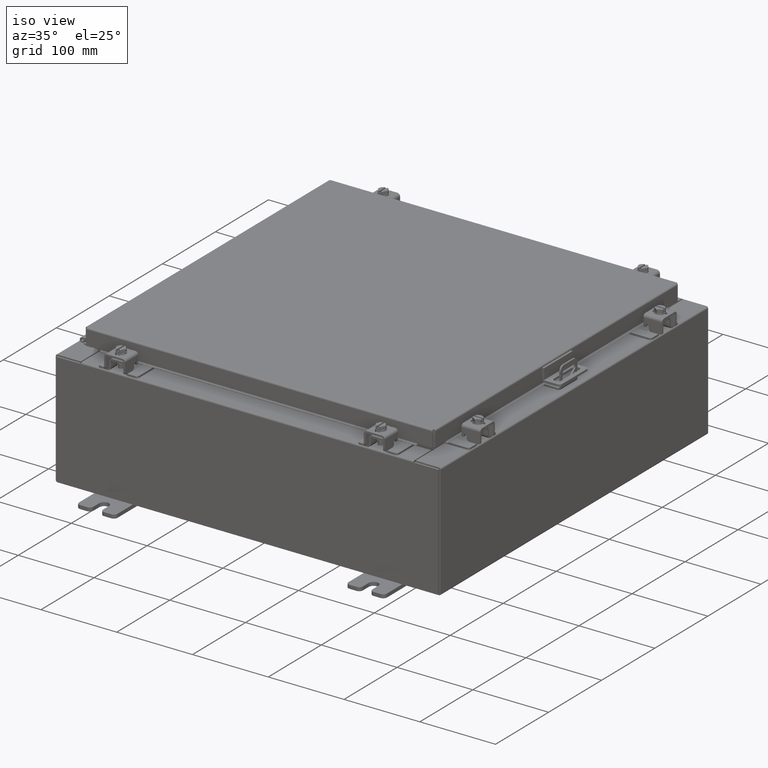
[diagram: clean part render]
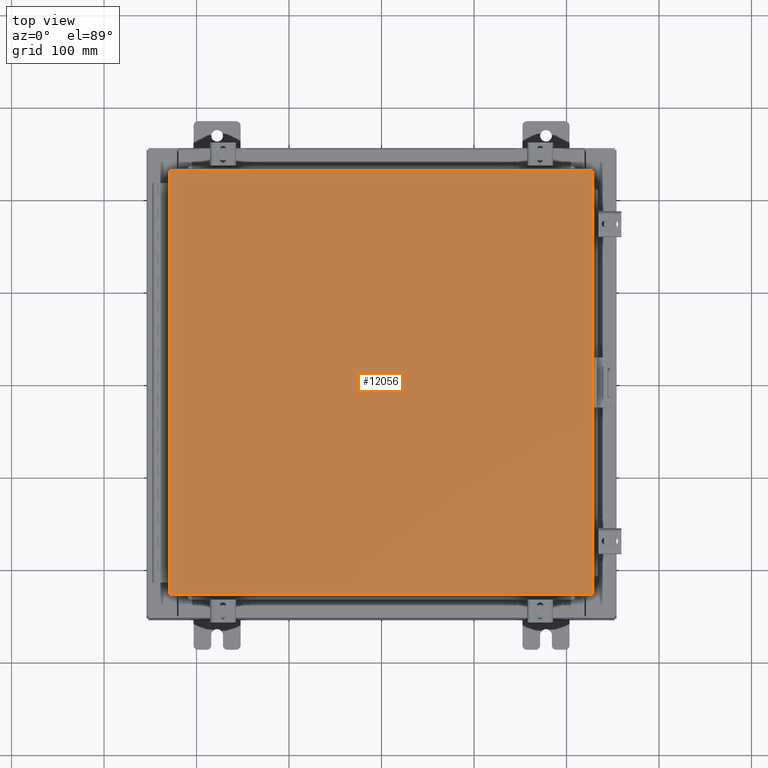
[diagram: tour spotlight — one face highlighted and labeled with its STEP entity id]
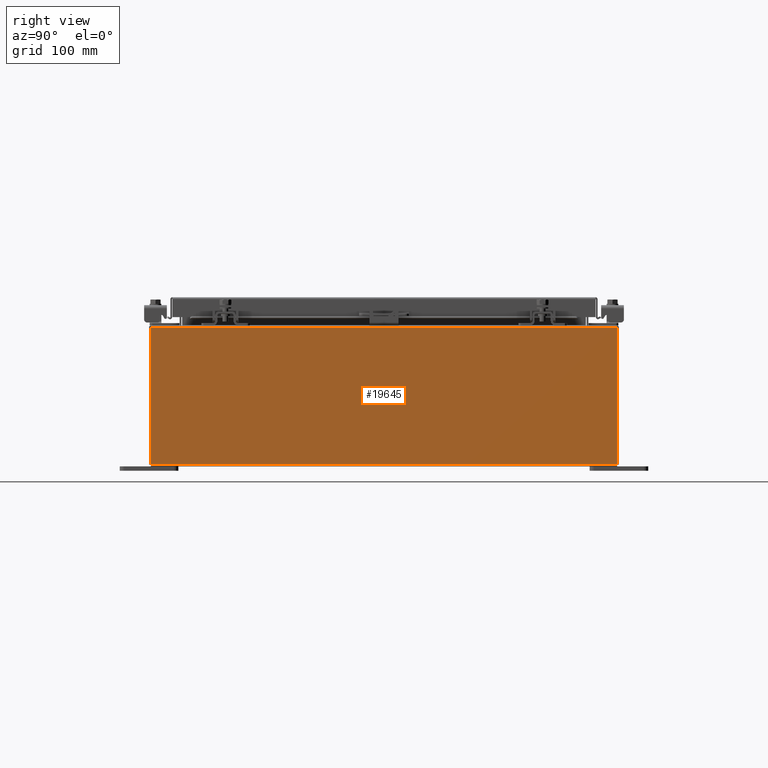
[diagram: tour spotlight — one face highlighted and labeled with its STEP entity id]
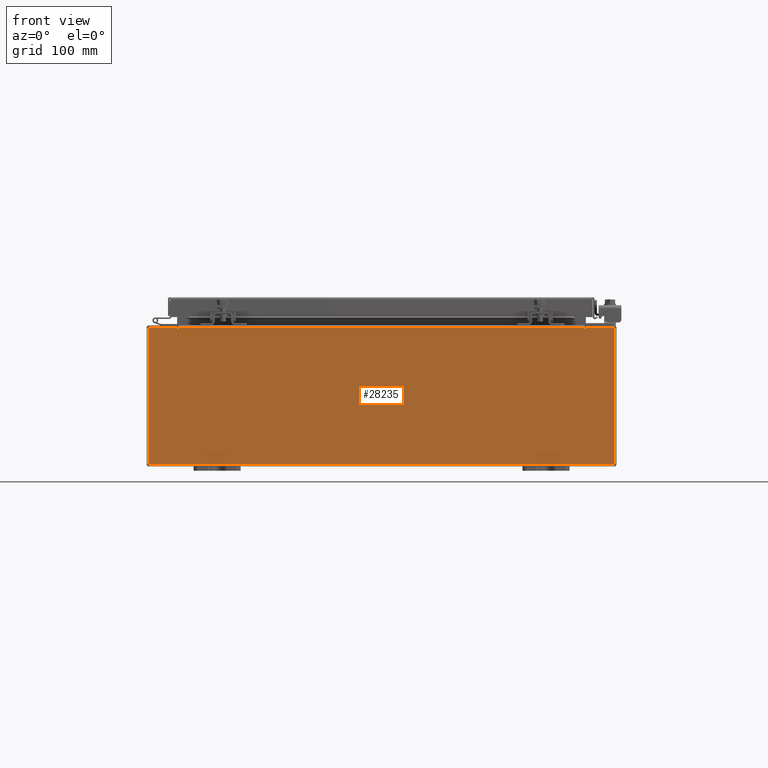
[diagram: tour spotlight — one face highlighted and labeled with its STEP entity id]
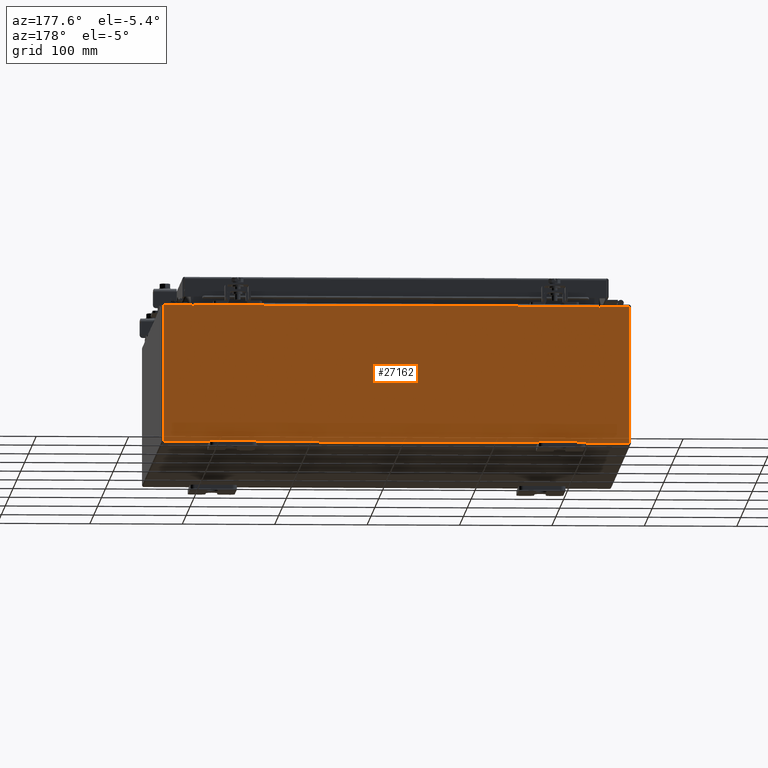
[diagram: tour spotlight — one face highlighted and labeled with its STEP entity id]
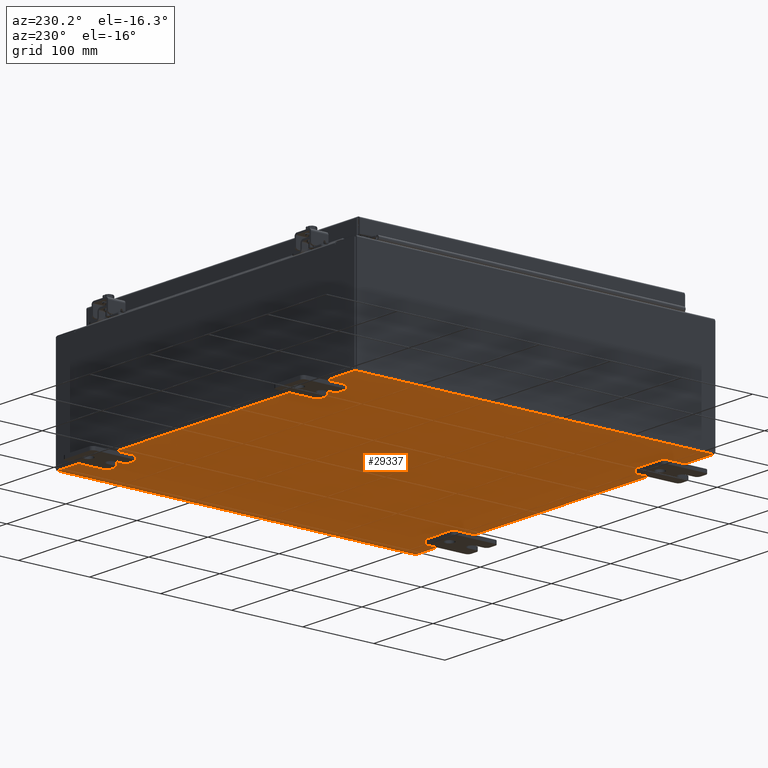
[diagram: tour spotlight — one face highlighted and labeled with its STEP entity id]
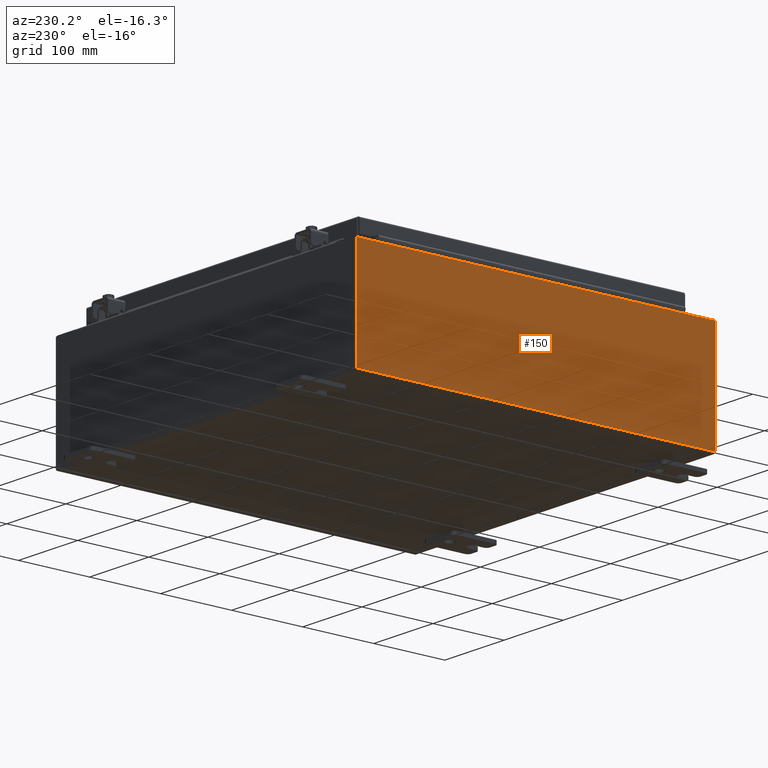
[diagram: tour spotlight — one face highlighted and labeled with its STEP entity id]
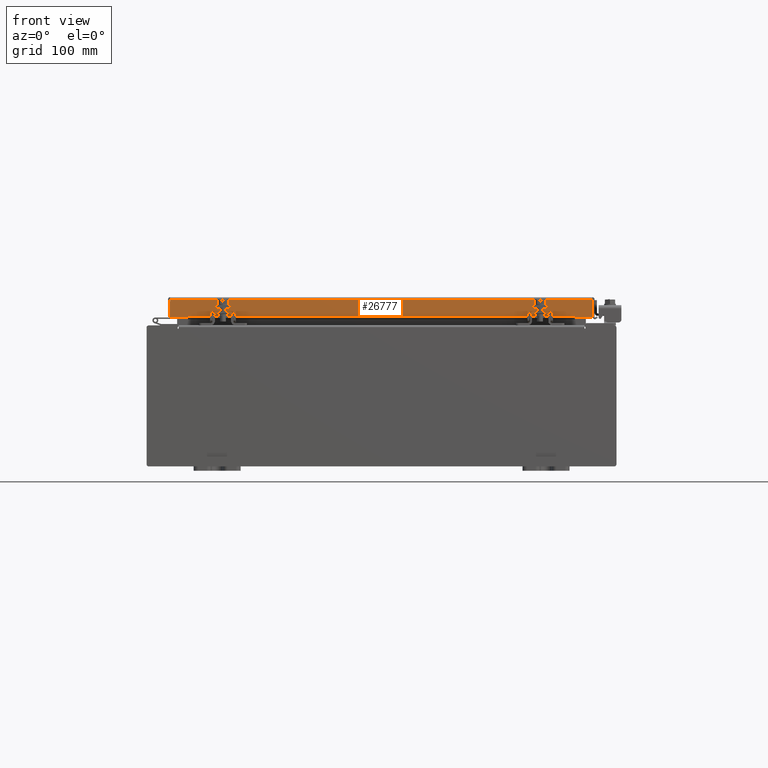
[diagram: tour spotlight — one face highlighted and labeled with its STEP entity id]
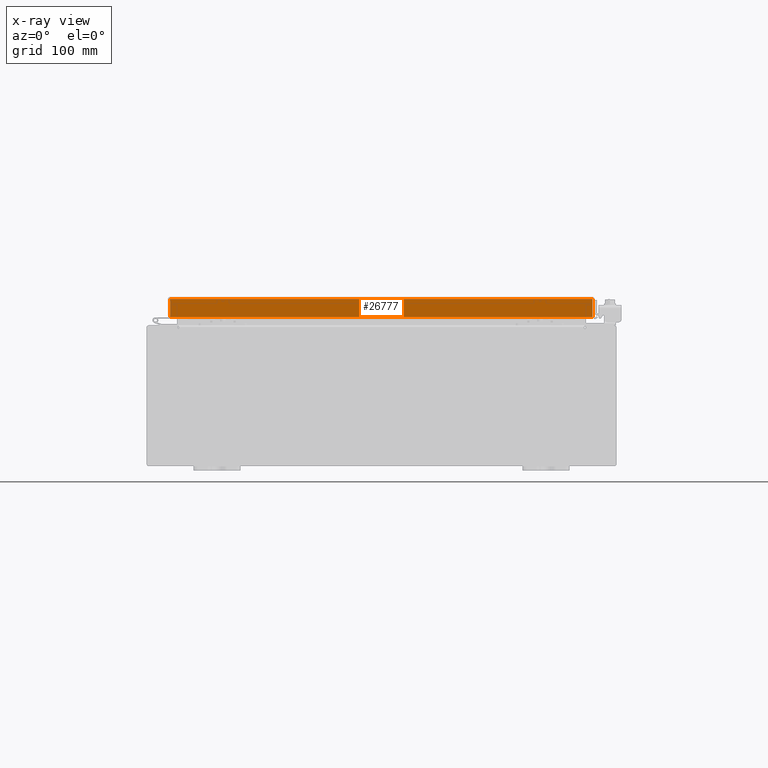
[diagram: x-ray of the same camera — body ghosted, this tour face saturated]
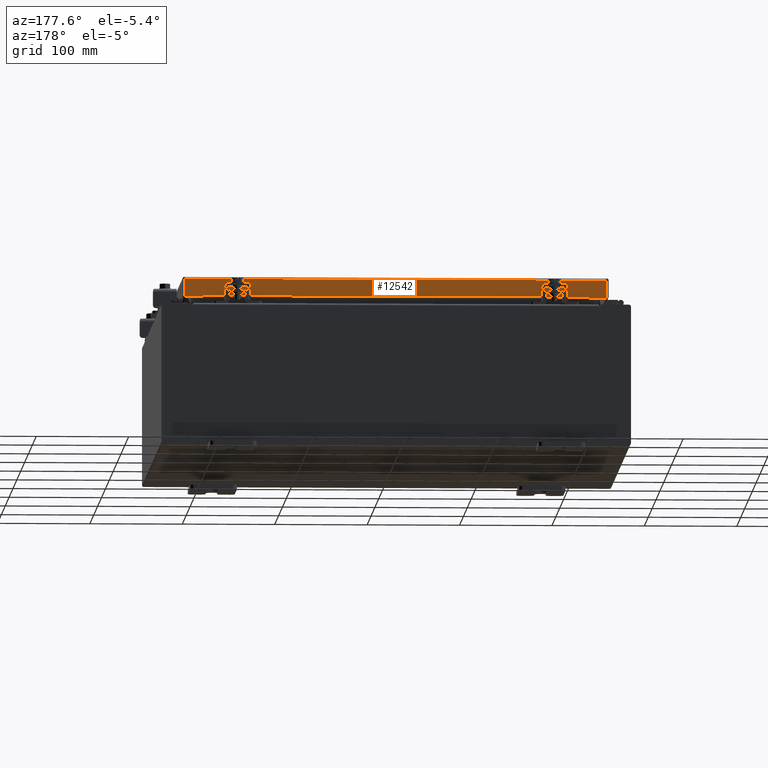
[diagram: tour spotlight — one face highlighted and labeled with its STEP entity id]
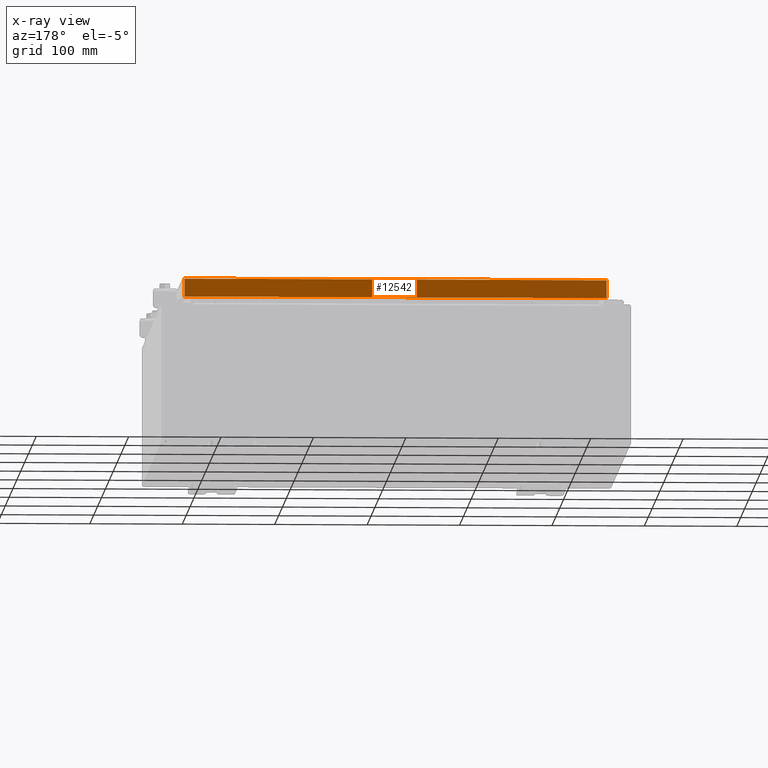
[diagram: x-ray of the same camera — body ghosted, this tour face saturated]
A machine part: a face-by-face anatomy tour. The part has 1613 B-rep faces; the first image is the clean iso view, then the 8 largest visible faces are spotlighted one at a time (largest first), each with its STEP entity span.

Face 1 — top view, entity #12056. In plain terms, the highlighted planar face has unit normal (0, 0, -1).
Definition (entity closure, byte-faithful):
#576 = EDGE_CURVE ( 'NONE', #4746, #21052, #14996, .T. ) ;
#1729 = DIRECTION ( 'NONE',  ( 0.0000000000000000000, -1.000000000000000000, 0.0000000000000000000 ) ) ;
#4060 = CARTESIAN_POINT ( 'NONE',  ( 8.990300000000001300, 9.006299999999999500, -2.048885995248197400E-016 ) ) ;
#4746 = VERTEX_POINT ( 'NONE', #24938 ) ;
#6111 = DIRECTION ( 'NONE',  ( 1.000000000000000000, -0.0000000000000000000, -0.0000000000000000000 ) ) ;
#6351 = DIRECTION ( 'NONE',  ( -1.000000000000000000, -0.0000000000000000000, -0.0000000000000000000 ) ) ;
#6765 = DIRECTION ( 'NONE',  ( -1.000000000000000000, 0.0000000000000000000, -0.0000000000000000000 ) ) ;
#7831 = EDGE_CURVE ( 'NONE', #21517, #8544, #17716, .T. ) ;
#8510 = CARTESIAN_POINT ( 'NONE',  ( -8.990299999999997700, 9.006299999999999500, -2.048885995248197400E-016 ) ) ;
#8544 = VERTEX_POINT ( 'NONE', #24638 ) ;
#8655 = FACE_OUTER_BOUND ( 'NONE', #21718, .T. ) ;
#8924 = CARTESIAN_POINT ( 'NONE',  ( -8.990299999999997700, 9.006299999999999500, -2.048885995248197400E-016 ) ) ;
#8965 = VECTOR ( 'NONE', #26512, 39.37007874015748100 ) ;
#11707 = VECTOR ( 'NONE', #1729, 39.37007874015748100 ) ;
#12056 = ADVANCED_FACE ( 'NONE', ( #8655 ), #13489, .F. ) ;
#13169 = VECTOR ( 'NONE', #6351, 39.37007874015748100 ) ;
#13489 = PLANE ( 'NONE',  #16262 ) ;
#14455 = EDGE_CURVE ( 'NONE', #21052, #21517, #19939, .T. ) ;
#14996 = LINE ( 'NONE', #29237, #8965 ) ;
#16262 = AXIS2_PLACEMENT_3D ( 'NONE', #29433, #20364, #6765 ) ;
#17716 = LINE ( 'NONE', #8510, #11707 ) ;
#19395 = VECTOR ( 'NONE', #6111, 39.37007874015748100 ) ;
#19727 = CARTESIAN_POINT ( 'NONE',  ( -8.990299999999999500, -9.006299999999999500, -2.048885995248197400E-016 ) ) ;
#19939 = LINE ( 'NONE', #4060, #13169 ) ;
#20364 = DIRECTION ( 'NONE',  ( 0.0000000000000000000, 0.0000000000000000000, -1.000000000000000000 ) ) ;
#20848 = ORIENTED_EDGE ( 'NONE', *, *, #7831, .T. ) ;
#20971 = CARTESIAN_POINT ( 'NONE',  ( 8.990300000000001300, 9.006299999999999500, -2.048885995248197400E-016 ) ) ;
#21052 = VERTEX_POINT ( 'NONE', #20971 ) ;
#21517 = VERTEX_POINT ( 'NONE', #8924 ) ;
#21718 = EDGE_LOOP ( 'NONE', ( #24492, #22102, #26766, #20848 ) ) ;
#22102 = ORIENTED_EDGE ( 'NONE', *, *, #576, .T. ) ;
#24492 = ORIENTED_EDGE ( 'NONE', *, *, #25526, .T. ) ;
#24638 = CARTESIAN_POINT ( 'NONE',  ( -8.990299999999999500, -9.006299999999999500, -2.048885995248197400E-016 ) ) ;
#24938 = CARTESIAN_POINT ( 'NONE',  ( 8.990299999999999500, -9.006299999999999500, -7.512581982576723400E-016 ) ) ;
#25413 = LINE ( 'NONE', #19727, #19395 ) ;
#25526 = EDGE_CURVE ( 'NONE', #8544, #4746, #25413, .T. ) ;
#26512 = DIRECTION ( 'NONE',  ( 0.0000000000000000000, 1.000000000000000000, 0.0000000000000000000 ) ) ;
#26766 = ORIENTED_EDGE ( 'NONE', *, *, #14455, .T. ) ;
#29237 = CARTESIAN_POINT ( 'NONE',  ( 8.990299999999999500, -9.006299999999999500, -7.512581982576723400E-016 ) ) ;
#29433 = CARTESIAN_POINT ( 'NONE',  ( 0.0000000000000000000, 0.0000000000000000000, 0.0000000000000000000 ) ) ;

Face 2 — right view, entity #19645. In plain terms, the highlighted planar face has unit normal (-1, 0, 0).
Definition (entity closure, byte-faithful):
#687 = CARTESIAN_POINT ( 'NONE',  ( 10.00000000000000000, 0.0000000000000000000, -3.345627304943080600E-014 ) ) ;
#916 = DIRECTION ( 'NONE',  ( 3.319545939341922800E-015, 0.0000000000000000000, 1.000000000000000000 ) ) ;
#1193 = VERTEX_POINT ( 'NONE', #22741 ) ;
#3207 = CARTESIAN_POINT ( 'NONE',  ( 10.00000000000000000, 9.925300000000001800, -3.345627304943080600E-014 ) ) ;
#4650 = CARTESIAN_POINT ( 'NONE',  ( 10.00000000000000000, -9.925299999999998200, -3.345627304943080600E-014 ) ) ;
#6882 = CARTESIAN_POINT ( 'NONE',  ( 10.00000000000000000, -9.925299999999998200, 0.01299999999999986400 ) ) ;
#7577 = LINE ( 'NONE', #4650, #12914 ) ;
#7606 = LINE ( 'NONE', #6882, #18984 ) ;
#9110 = VERTEX_POINT ( 'NONE', #17371 ) ;
#9882 = DIRECTION ( 'NONE',  ( 3.319545939341922800E-015, 0.0000000000000000000, 1.000000000000000000 ) ) ;
#11216 = CARTESIAN_POINT ( 'NONE',  ( 10.00000000000002000, 9.925299999999998200, 5.837599999999999200 ) ) ;
#12914 = VECTOR ( 'NONE', #15980, 39.37007874015748100 ) ;
#15150 = VECTOR ( 'NONE', #916, 39.37007874015748100 ) ;
#15777 = DIRECTION ( 'NONE',  ( -0.0000000000000000000, -1.000000000000000000, -0.0000000000000000000 ) ) ;
#15980 = DIRECTION ( 'NONE',  ( -3.319545939341922800E-015, 0.0000000000000000000, -1.000000000000000000 ) ) ;
#16604 = PLANE ( 'NONE',  #18108 ) ;
#16917 = CARTESIAN_POINT ( 'NONE',  ( 10.00000000000000000, 9.925300000000000000, 0.01299999999999986400 ) ) ;
#17371 = CARTESIAN_POINT ( 'NONE',  ( 10.00000000000000000, -9.925299999999998200, 0.01299999999999985900 ) ) ;
#18108 = AXIS2_PLACEMENT_3D ( 'NONE', #687, #23447, #9882 ) ;
#18305 = DIRECTION ( 'NONE',  ( -0.0000000000000000000, -1.000000000000000000, -0.0000000000000000000 ) ) ;
#18950 = ORIENTED_EDGE ( 'NONE', *, *, #20032, .T. ) ;
#18984 = VECTOR ( 'NONE', #18305, 39.37007874015748100 ) ;
#19158 = ORIENTED_EDGE ( 'NONE', *, *, #19985, .T. ) ;
#19489 = EDGE_CURVE ( 'NONE', #27491, #9110, #7606, .T. ) ;
#19645 = ADVANCED_FACE ( 'NONE', ( #27523 ), #16604, .F. ) ;
#19985 = EDGE_CURVE ( 'NONE', #27999, #1193, #26422, .T. ) ;
#20032 = EDGE_CURVE ( 'NONE', #1193, #9110, #7577, .T. ) ;
#20375 = VECTOR ( 'NONE', #15777, 39.37007874015748100 ) ;
#20881 = CARTESIAN_POINT ( 'NONE',  ( 10.00000000000002000, 9.925299999999998200, 5.837599999999999200 ) ) ;
#20919 = ORIENTED_EDGE ( 'NONE', *, *, #24001, .T. ) ;
#22741 = CARTESIAN_POINT ( 'NONE',  ( 10.00000000000002000, -9.925299999999998200, 5.837599999999999200 ) ) ;
#23447 = DIRECTION ( 'NONE',  ( -1.000000000000000000, 0.0000000000000000000, 3.319545939341922800E-015 ) ) ;
#24001 = EDGE_CURVE ( 'NONE', #27491, #27999, #27256, .T. ) ;
#24765 = EDGE_LOOP ( 'NONE', ( #19158, #18950, #25656, #20919 ) ) ;
#25656 = ORIENTED_EDGE ( 'NONE', *, *, #19489, .F. ) ;
#26422 = LINE ( 'NONE', #11216, #20375 ) ;
#27256 = LINE ( 'NONE', #3207, #15150 ) ;
#27491 = VERTEX_POINT ( 'NONE', #16917 ) ;
#27523 = FACE_OUTER_BOUND ( 'NONE', #24765, .T. ) ;
#27999 = VERTEX_POINT ( 'NONE', #20881 ) ;

Face 3 — front view, entity #28235. In plain terms, the highlighted planar face has unit normal (-0, 1, -0).
Definition (entity closure, byte-faithful):
#81 = CARTESIAN_POINT ( 'NONE',  ( -9.925300000000000000, 0.0000000000000000000, 2.925300000000000500 ) ) ;
#359 = VERTEX_POINT ( 'NONE', #15081 ) ;
#449 = LINE ( 'NONE', #9664, #23927 ) ;
#569 = DIRECTION ( 'NONE',  ( -1.000000000000000000, -0.0000000000000000000, -0.0000000000000000000 ) ) ;
#1553 = DIRECTION ( 'NONE',  ( 0.0000000000000000000, 0.0000000000000000000, -1.000000000000000000 ) ) ;
#1969 = LINE ( 'NONE', #20288, #25439 ) ;
#2119 = EDGE_CURVE ( 'NONE', #26122, #7281, #7860, .T. ) ;
#2198 = AXIS2_PLACEMENT_3D ( 'NONE', #24932, #11352, #27257 ) ;
#2482 = AXIS2_PLACEMENT_3D ( 'NONE', #7404, #23280, #9720 ) ;
#2515 = VECTOR ( 'NONE', #16541, 39.37007874015748100 ) ;
#2983 = LINE ( 'NONE', #81, #27888 ) ;
#3155 = VERTEX_POINT ( 'NONE', #19216 ) ;
#3373 = CARTESIAN_POINT ( 'NONE',  ( -9.925300000000000000, 0.0000000000000000000, 2.925300000000000500 ) ) ;
#3492 = CARTESIAN_POINT ( 'NONE',  ( -9.925300000000000000, 0.0000000000000000000, 2.925300000000000500 ) ) ;
#3582 = DIRECTION ( 'NONE',  ( 0.0000000000000000000, -1.000000000000000000, 0.0000000000000000000 ) ) ;
#4518 = CIRCLE ( 'NONE', #2198, 0.01867500000000003900 ) ;
#4995 = CARTESIAN_POINT ( 'NONE',  ( 8.637200000000000000, 0.0000000000000000000, 0.0000000000000000000 ) ) ;
#5839 = EDGE_LOOP ( 'NONE', ( #26820, #13250, #26655, #24051, #23367, #8634, #21284, #6068, #19187, #24326, #26489, #15571 ) ) ;
#6068 = ORIENTED_EDGE ( 'NONE', *, *, #17959, .T. ) ;
#6734 = CARTESIAN_POINT ( 'NONE',  ( 8.637200000000000000, 0.0000000000000000000, 2.912300000000000600 ) ) ;
#6940 = VECTOR ( 'NONE', #1553, 39.37007874015748100 ) ;
#7281 = VERTEX_POINT ( 'NONE', #27334 ) ;
#7404 = CARTESIAN_POINT ( 'NONE',  ( 8.655875000000000000, 0.0000000000000000000, 2.874950000000000600 ) ) ;
#7860 = LINE ( 'NONE', #11436, #19938 ) ;
#7862 = LINE ( 'NONE', #12077, #2515 ) ;
#8114 = CARTESIAN_POINT ( 'NONE',  ( -8.674549999999996400, 0.0000000000000000000, 2.874950000000000600 ) ) ;
#8634 = ORIENTED_EDGE ( 'NONE', *, *, #18962, .F. ) ;
#9129 = VECTOR ( 'NONE', #26117, 39.37007874015748100 ) ;
#9425 = EDGE_CURVE ( 'NONE', #22225, #17925, #19118, .T. ) ;
#9441 = LINE ( 'NONE', #3492, #26834 ) ;
#9443 = VERTEX_POINT ( 'NONE', #16820 ) ;
#9664 = CARTESIAN_POINT ( 'NONE',  ( -9.925300000000000000, 0.0000000000000000000, -2.925299999999999600 ) ) ;
#9720 = DIRECTION ( 'NONE',  ( 0.0000000000000000000, 0.0000000000000000000, -1.000000000000000000 ) ) ;
#9760 = EDGE_CURVE ( 'NONE', #27241, #21862, #4518, .T. ) ;
#9808 = CIRCLE ( 'NONE', #2482, 0.01867500000000003900 ) ;
#10876 = EDGE_CURVE ( 'NONE', #359, #27241, #25056, .T. ) ;
#11251 = DIRECTION ( 'NONE',  ( 0.0000000000000000000, 0.0000000000000000000, 1.000000000000000000 ) ) ;
#11352 = DIRECTION ( 'NONE',  ( -0.0000000000000000000, 1.000000000000000000, -0.0000000000000000000 ) ) ;
#11436 = CARTESIAN_POINT ( 'NONE',  ( 8.674549999999813500, -0.0000000000000000000, -5.647877341832707700E-013 ) ) ;
#11711 = EDGE_CURVE ( 'NONE', #27367, #26804, #15061, .T. ) ;
#11734 = DIRECTION ( 'NONE',  ( -6.510859170600007400E-014, 0.0000000000000000000, -1.000000000000000000 ) ) ;
#12077 = CARTESIAN_POINT ( 'NONE',  ( -8.637200000000000000, 1.024442997624098700E-016, 2.912300000000000600 ) ) ;
#12167 = EDGE_CURVE ( 'NONE', #17925, #9443, #449, .T. ) ;
#13250 = ORIENTED_EDGE ( 'NONE', *, *, #9760, .F. ) ;
#13538 = EDGE_CURVE ( 'NONE', #359, #26804, #7862, .T. ) ;
#14246 = CARTESIAN_POINT ( 'NONE',  ( -9.925300000000000000, 0.0000000000000000000, 2.925300000000000500 ) ) ;
#15061 = LINE ( 'NONE', #4995, #27161 ) ;
#15066 = CARTESIAN_POINT ( 'NONE',  ( -8.637199999999996400, -0.0000000000000000000, 0.0000000000000000000 ) ) ;
#15081 = CARTESIAN_POINT ( 'NONE',  ( -8.637199999999996400, 1.024442997624098700E-016, 2.912300000000000600 ) ) ;
#15496 = CARTESIAN_POINT ( 'NONE',  ( 8.674550000000001800, 0.0000000000000000000, 2.925300000000000500 ) ) ;
#15571 = ORIENTED_EDGE ( 'NONE', *, *, #26207, .T. ) ;
#15945 = CARTESIAN_POINT ( 'NONE',  ( -8.637199999999996400, -0.0000000000000000000, 2.874950000000000600 ) ) ;
#15996 = DIRECTION ( 'NONE',  ( 1.000000000000000000, 0.0000000000000000000, 0.0000000000000000000 ) ) ;
#16229 = CARTESIAN_POINT ( 'NONE',  ( 9.925300000000000000, 0.0000000000000000000, 2.925300000000000500 ) ) ;
#16335 = CARTESIAN_POINT ( 'NONE',  ( 8.637200000000000000, 0.0000000000000000000, 2.874950000000000600 ) ) ;
#16541 = DIRECTION ( 'NONE',  ( 1.000000000000000000, 0.0000000000000000000, 0.0000000000000000000 ) ) ;
#16626 = FACE_OUTER_BOUND ( 'NONE', #5839, .T. ) ;
#16820 = CARTESIAN_POINT ( 'NONE',  ( -9.925300000000000000, 0.0000000000000000000, -2.925299999999999600 ) ) ;
#16990 = CARTESIAN_POINT ( 'NONE',  ( 9.925300000000000000, 0.0000000000000000000, -2.925299999999999600 ) ) ;
#17171 = PLANE ( 'NONE',  #22819 ) ;
#17565 = EDGE_CURVE ( 'NONE', #21862, #3155, #1969, .T. ) ;
#17925 = VERTEX_POINT ( 'NONE', #16990 ) ;
#17959 = EDGE_CURVE ( 'NONE', #26122, #22225, #9441, .T. ) ;
#18405 = VECTOR ( 'NONE', #19017, 39.37007874015748100 ) ;
#18962 = EDGE_CURVE ( 'NONE', #7281, #27367, #9808, .T. ) ;
#19017 = DIRECTION ( 'NONE',  ( 0.0000000000000000000, 0.0000000000000000000, -1.000000000000000000 ) ) ;
#19118 = LINE ( 'NONE', #21316, #18405 ) ;
#19187 = ORIENTED_EDGE ( 'NONE', *, *, #9425, .T. ) ;
#19216 = CARTESIAN_POINT ( 'NONE',  ( -8.674549999999996400, 0.0000000000000000000, 2.925300000000000500 ) ) ;
#19484 = DIRECTION ( 'NONE',  ( 0.0000000000000000000, -0.0000000000000000000, -1.000000000000000000 ) ) ;
#19938 = VECTOR ( 'NONE', #11734, 39.37007874015748100 ) ;
#20288 = CARTESIAN_POINT ( 'NONE',  ( -8.674549999999996400, -0.0000000000000000000, 0.0000000000000000000 ) ) ;
#21220 = LINE ( 'NONE', #3373, #9129 ) ;
#21284 = ORIENTED_EDGE ( 'NONE', *, *, #2119, .F. ) ;
#21316 = CARTESIAN_POINT ( 'NONE',  ( 9.925300000000000000, 0.0000000000000000000, 2.925300000000000500 ) ) ;
#21862 = VERTEX_POINT ( 'NONE', #8114 ) ;
#22225 = VERTEX_POINT ( 'NONE', #16229 ) ;
#22819 = AXIS2_PLACEMENT_3D ( 'NONE', #23933, #3582, #19484 ) ;
#23074 = DIRECTION ( 'NONE',  ( 0.0000000000000000000, 0.0000000000000000000, 1.000000000000000000 ) ) ;
#23280 = DIRECTION ( 'NONE',  ( -0.0000000000000000000, 1.000000000000000000, -0.0000000000000000000 ) ) ;
#23367 = ORIENTED_EDGE ( 'NONE', *, *, #11711, .F. ) ;
#23843 = DIRECTION ( 'NONE',  ( 1.000000000000000000, 0.0000000000000000000, 0.0000000000000000000 ) ) ;
#23927 = VECTOR ( 'NONE', #569, 39.37007874015748100 ) ;
#23933 = CARTESIAN_POINT ( 'NONE',  ( 0.0000000000000000000, 0.0000000000000000000, 0.0000000000000000000 ) ) ;
#24051 = ORIENTED_EDGE ( 'NONE', *, *, #13538, .T. ) ;
#24326 = ORIENTED_EDGE ( 'NONE', *, *, #12167, .T. ) ;
#24694 = EDGE_CURVE ( 'NONE', #9443, #28759, #21220, .T. ) ;
#24932 = CARTESIAN_POINT ( 'NONE',  ( -8.655874999999996400, 0.0000000000000000000, 2.874950000000000600 ) ) ;
#25056 = LINE ( 'NONE', #15066, #6940 ) ;
#25439 = VECTOR ( 'NONE', #11251, 39.37007874015748100 ) ;
#26117 = DIRECTION ( 'NONE',  ( -0.0000000000000000000, -0.0000000000000000000, 1.000000000000000000 ) ) ;
#26122 = VERTEX_POINT ( 'NONE', #15496 ) ;
#26207 = EDGE_CURVE ( 'NONE', #28759, #3155, #2983, .T. ) ;
#26489 = ORIENTED_EDGE ( 'NONE', *, *, #24694, .T. ) ;
#26655 = ORIENTED_EDGE ( 'NONE', *, *, #10876, .F. ) ;
#26804 = VERTEX_POINT ( 'NONE', #6734 ) ;
#26820 = ORIENTED_EDGE ( 'NONE', *, *, #17565, .F. ) ;
#26834 = VECTOR ( 'NONE', #23843, 39.37007874015748100 ) ;
#27161 = VECTOR ( 'NONE', #23074, 39.37007874015748100 ) ;
#27241 = VERTEX_POINT ( 'NONE', #15945 ) ;
#27257 = DIRECTION ( 'NONE',  ( 0.0000000000000000000, 0.0000000000000000000, -1.000000000000000000 ) ) ;
#27334 = CARTESIAN_POINT ( 'NONE',  ( 8.674550000000000000, 0.0000000000000000000, 2.874950000000000600 ) ) ;
#27367 = VERTEX_POINT ( 'NONE', #16335 ) ;
#27888 = VECTOR ( 'NONE', #15996, 39.37007874015748100 ) ;
#28235 = ADVANCED_FACE ( 'NONE', ( #16626 ), #17171, .F. ) ;
#28759 = VERTEX_POINT ( 'NONE', #14246 ) ;

Face 4 — auxiliary view, entity #27162. In plain terms, the highlighted planar face has unit normal (0, -1, 0).
Definition (entity closure, byte-faithful):
#277 = CARTESIAN_POINT ( 'NONE',  ( -9.925300000000000000, 0.0000000000000000000, 2.925300000000000500 ) ) ;
#728 = VECTOR ( 'NONE', #25454, 39.37007874015748100 ) ;
#938 = LINE ( 'NONE', #15403, #6992 ) ;
#1293 = VECTOR ( 'NONE', #7663, 39.37007874015748100 ) ;
#1421 = CARTESIAN_POINT ( 'NONE',  ( -8.637200000000000000, 1.024442997624098700E-016, 2.912300000000000600 ) ) ;
#1683 = VECTOR ( 'NONE', #18917, 39.37007874015748100 ) ;
#1876 = EDGE_CURVE ( 'NONE', #25938, #29068, #13528, .T. ) ;
#1959 = CARTESIAN_POINT ( 'NONE',  ( 8.637200000000000000, 0.0000000000000000000, 0.0000000000000000000 ) ) ;
#2316 = EDGE_CURVE ( 'NONE', #12379, #19331, #3595, .T. ) ;
#2751 = LINE ( 'NONE', #1421, #26216 ) ;
#2924 = CARTESIAN_POINT ( 'NONE',  ( -9.925300000000000000, 0.0000000000000000000, -2.925299999999999600 ) ) ;
#3078 = VERTEX_POINT ( 'NONE', #21298 ) ;
#3595 = LINE ( 'NONE', #277, #21010 ) ;
#4041 = VERTEX_POINT ( 'NONE', #23520 ) ;
#4312 = ORIENTED_EDGE ( 'NONE', *, *, #10648, .F. ) ;
#4389 = VERTEX_POINT ( 'NONE', #22842 ) ;
#4524 = ORIENTED_EDGE ( 'NONE', *, *, #20027, .T. ) ;
#4998 = ORIENTED_EDGE ( 'NONE', *, *, #10323, .F. ) ;
#5340 = DIRECTION ( 'NONE',  ( -0.0000000000000000000, 1.000000000000000000, -0.0000000000000000000 ) ) ;
#6008 = CIRCLE ( 'NONE', #16346, 0.01867500000000003900 ) ;
#6321 = PLANE ( 'NONE',  #19003 ) ;
#6869 = CARTESIAN_POINT ( 'NONE',  ( -8.674549999999996400, 0.0000000000000000000, 2.925300000000000500 ) ) ;
#6992 = VECTOR ( 'NONE', #13118, 39.37007874015748100 ) ;
#7480 = ORIENTED_EDGE ( 'NONE', *, *, #18997, .T. ) ;
#7571 = VERTEX_POINT ( 'NONE', #25999 ) ;
#7663 = DIRECTION ( 'NONE',  ( 0.0000000000000000000, 0.0000000000000000000, -1.000000000000000000 ) ) ;
#7738 = LINE ( 'NONE', #12072, #1683 ) ;
#7866 = CARTESIAN_POINT ( 'NONE',  ( 8.637200000000000000, 0.0000000000000000000, 2.912300000000000600 ) ) ;
#8470 = CARTESIAN_POINT ( 'NONE',  ( 8.655875000000000000, 0.0000000000000000000, 2.874950000000000600 ) ) ;
#8604 = DIRECTION ( 'NONE',  ( 0.0000000000000000000, -1.000000000000000000, 0.0000000000000000000 ) ) ;
#9120 = VECTOR ( 'NONE', #15577, 39.37007874015748100 ) ;
#9237 = CARTESIAN_POINT ( 'NONE',  ( -9.925300000000000000, 0.0000000000000000000, 2.925300000000000500 ) ) ;
#9390 = EDGE_CURVE ( 'NONE', #4041, #29068, #7738, .T. ) ;
#9577 = EDGE_CURVE ( 'NONE', #7571, #29251, #2751, .T. ) ;
#9852 = LINE ( 'NONE', #1959, #9120 ) ;
#10323 = EDGE_CURVE ( 'NONE', #13632, #29251, #9852, .T. ) ;
#10648 = EDGE_CURVE ( 'NONE', #23211, #4041, #24015, .T. ) ;
#10753 = DIRECTION ( 'NONE',  ( 0.0000000000000000000, 0.0000000000000000000, -1.000000000000000000 ) ) ;
#12065 = ORIENTED_EDGE ( 'NONE', *, *, #9390, .F. ) ;
#12072 = CARTESIAN_POINT ( 'NONE',  ( -8.674549999999996400, -0.0000000000000000000, 0.0000000000000000000 ) ) ;
#12296 = CARTESIAN_POINT ( 'NONE',  ( 8.674549999999813500, -0.0000000000000000000, -5.647877341832707700E-013 ) ) ;
#12379 = VERTEX_POINT ( 'NONE', #14879 ) ;
#12895 = ORIENTED_EDGE ( 'NONE', *, *, #28919, .F. ) ;
#13118 = DIRECTION ( 'NONE',  ( 0.0000000000000000000, 0.0000000000000000000, -1.000000000000000000 ) ) ;
#13528 = LINE ( 'NONE', #26340, #728 ) ;
#13598 = VECTOR ( 'NONE', #25100, 39.37007874015748100 ) ;
#13632 = VERTEX_POINT ( 'NONE', #19125 ) ;
#13874 = VERTEX_POINT ( 'NONE', #19988 ) ;
#14157 = CARTESIAN_POINT ( 'NONE',  ( -8.637199999999996400, -0.0000000000000000000, 2.874950000000000600 ) ) ;
#14364 = VECTOR ( 'NONE', #16542, 39.37007874015748100 ) ;
#14494 = CARTESIAN_POINT ( 'NONE',  ( 9.925300000000000000, 0.0000000000000000000, 2.925300000000000500 ) ) ;
#14542 = DIRECTION ( 'NONE',  ( -6.510859170600007400E-014, 0.0000000000000000000, -1.000000000000000000 ) ) ;
#14879 = CARTESIAN_POINT ( 'NONE',  ( 8.674550000000001800, 0.0000000000000000000, 2.925300000000000500 ) ) ;
#15171 = VECTOR ( 'NONE', #14542, 39.37007874015748100 ) ;
#15403 = CARTESIAN_POINT ( 'NONE',  ( -8.637199999999996400, -0.0000000000000000000, 0.0000000000000000000 ) ) ;
#15577 = DIRECTION ( 'NONE',  ( 0.0000000000000000000, 0.0000000000000000000, 1.000000000000000000 ) ) ;
#15719 = FACE_OUTER_BOUND ( 'NONE', #19008, .T. ) ;
#16346 = AXIS2_PLACEMENT_3D ( 'NONE', #8470, #24340, #10753 ) ;
#16542 = DIRECTION ( 'NONE',  ( -1.000000000000000000, -0.0000000000000000000, -0.0000000000000000000 ) ) ;
#18711 = LINE ( 'NONE', #14494, #1293 ) ;
#18917 = DIRECTION ( 'NONE',  ( 0.0000000000000000000, 0.0000000000000000000, 1.000000000000000000 ) ) ;
#18960 = CARTESIAN_POINT ( 'NONE',  ( -8.655874999999996400, 0.0000000000000000000, 2.874950000000000600 ) ) ;
#18997 = EDGE_CURVE ( 'NONE', #3078, #4389, #27917, .T. ) ;
#19003 = AXIS2_PLACEMENT_3D ( 'NONE', #19439, #8604, #24477 ) ;
#19008 = EDGE_LOOP ( 'NONE', ( #12065, #4312, #12895, #21200, #4998, #27599, #28747, #27467, #26386, #7480, #4524, #20561 ) ) ;
#19125 = CARTESIAN_POINT ( 'NONE',  ( 8.637200000000000000, 0.0000000000000000000, 2.874950000000000600 ) ) ;
#19331 = VERTEX_POINT ( 'NONE', #29156 ) ;
#19439 = CARTESIAN_POINT ( 'NONE',  ( 0.0000000000000000000, 0.0000000000000000000, 0.0000000000000000000 ) ) ;
#19988 = CARTESIAN_POINT ( 'NONE',  ( 8.674550000000000000, 0.0000000000000000000, 2.874950000000000600 ) ) ;
#20027 = EDGE_CURVE ( 'NONE', #4389, #25938, #24980, .T. ) ;
#20316 = AXIS2_PLACEMENT_3D ( 'NONE', #18960, #5340, #21262 ) ;
#20561 = ORIENTED_EDGE ( 'NONE', *, *, #1876, .T. ) ;
#21010 = VECTOR ( 'NONE', #24088, 39.37007874015748100 ) ;
#21200 = ORIENTED_EDGE ( 'NONE', *, *, #9577, .T. ) ;
#21262 = DIRECTION ( 'NONE',  ( 0.0000000000000000000, 0.0000000000000000000, -1.000000000000000000 ) ) ;
#21298 = CARTESIAN_POINT ( 'NONE',  ( 9.925300000000000000, 0.0000000000000000000, -2.925299999999999600 ) ) ;
#21906 = DIRECTION ( 'NONE',  ( 1.000000000000000000, 0.0000000000000000000, 0.0000000000000000000 ) ) ;
#22842 = CARTESIAN_POINT ( 'NONE',  ( -9.925300000000000000, 0.0000000000000000000, -2.925299999999999600 ) ) ;
#23211 = VERTEX_POINT ( 'NONE', #14157 ) ;
#23520 = CARTESIAN_POINT ( 'NONE',  ( -8.674549999999996400, 0.0000000000000000000, 2.874950000000000600 ) ) ;
#24015 = CIRCLE ( 'NONE', #20316, 0.01867500000000003900 ) ;
#24088 = DIRECTION ( 'NONE',  ( 1.000000000000000000, 0.0000000000000000000, 0.0000000000000000000 ) ) ;
#24340 = DIRECTION ( 'NONE',  ( -0.0000000000000000000, 1.000000000000000000, -0.0000000000000000000 ) ) ;
#24477 = DIRECTION ( 'NONE',  ( 0.0000000000000000000, -0.0000000000000000000, -1.000000000000000000 ) ) ;
#24980 = LINE ( 'NONE', #9237, #13598 ) ;
#25100 = DIRECTION ( 'NONE',  ( -0.0000000000000000000, -0.0000000000000000000, 1.000000000000000000 ) ) ;
#25454 = DIRECTION ( 'NONE',  ( 1.000000000000000000, 0.0000000000000000000, 0.0000000000000000000 ) ) ;
#25938 = VERTEX_POINT ( 'NONE', #28565 ) ;
#25999 = CARTESIAN_POINT ( 'NONE',  ( -8.637199999999996400, 1.024442997624098700E-016, 2.912300000000000600 ) ) ;
#26216 = VECTOR ( 'NONE', #21906, 39.37007874015748100 ) ;
#26340 = CARTESIAN_POINT ( 'NONE',  ( -9.925300000000000000, 0.0000000000000000000, 2.925300000000000500 ) ) ;
#26386 = ORIENTED_EDGE ( 'NONE', *, *, #29188, .T. ) ;
#27162 = ADVANCED_FACE ( 'NONE', ( #15719 ), #6321, .F. ) ;
#27282 = LINE ( 'NONE', #12296, #15171 ) ;
#27467 = ORIENTED_EDGE ( 'NONE', *, *, #2316, .T. ) ;
#27599 = ORIENTED_EDGE ( 'NONE', *, *, #27675, .F. ) ;
#27675 = EDGE_CURVE ( 'NONE', #13874, #13632, #6008, .T. ) ;
#27917 = LINE ( 'NONE', #2924, #14364 ) ;
#28565 = CARTESIAN_POINT ( 'NONE',  ( -9.925300000000000000, 0.0000000000000000000, 2.925300000000000500 ) ) ;
#28747 = ORIENTED_EDGE ( 'NONE', *, *, #28804, .F. ) ;
#28804 = EDGE_CURVE ( 'NONE', #12379, #13874, #27282, .T. ) ;
#28919 = EDGE_CURVE ( 'NONE', #7571, #23211, #938, .T. ) ;
#29068 = VERTEX_POINT ( 'NONE', #6869 ) ;
#29156 = CARTESIAN_POINT ( 'NONE',  ( 9.925300000000000000, 0.0000000000000000000, 2.925300000000000500 ) ) ;
#29188 = EDGE_CURVE ( 'NONE', #19331, #3078, #18711, .T. ) ;
#29251 = VERTEX_POINT ( 'NONE', #7866 ) ;

Face 5 — auxiliary view, entity #29337. In plain terms, the highlighted planar face has unit normal (0, 0, -1).
Definition (entity closure, byte-faithful):
#48 = CARTESIAN_POINT ( 'NONE',  ( -9.912300000000000100, -9.925299999999998200, -0.07469999999999994700 ) ) ;
#3795 = ORIENTED_EDGE ( 'NONE', *, *, #6702, .F. ) ;
#4494 = LINE ( 'NONE', #23736, #9860 ) ;
#4693 = DIRECTION ( 'NONE',  ( 1.000000000000000000, 0.0000000000000000000, 0.0000000000000000000 ) ) ;
#4764 = AXIS2_PLACEMENT_3D ( 'NONE', #21874, #12826, #28740 ) ;
#5922 = CARTESIAN_POINT ( 'NONE',  ( 9.912300000000000100, -9.925299999999998200, -0.07470000000000000300 ) ) ;
#6627 = FACE_OUTER_BOUND ( 'NONE', #21410, .T. ) ;
#6702 = EDGE_CURVE ( 'NONE', #29322, #13034, #7635, .T. ) ;
#6829 = DIRECTION ( 'NONE',  ( -0.0000000000000000000, 1.000000000000000000, -0.0000000000000000000 ) ) ;
#7342 = CARTESIAN_POINT ( 'NONE',  ( 9.912300000000000100, 9.925300000000000000, -0.07469999999999994700 ) ) ;
#7635 = LINE ( 'NONE', #18310, #12959 ) ;
#9860 = VECTOR ( 'NONE', #12417, 39.37007874015748100 ) ;
#10773 = VECTOR ( 'NONE', #6829, 39.37007874015748100 ) ;
#12417 = DIRECTION ( 'NONE',  ( -1.000000000000000000, -0.0000000000000000000, -0.0000000000000000000 ) ) ;
#12733 = PLANE ( 'NONE',  #4764 ) ;
#12826 = DIRECTION ( 'NONE',  ( 0.0000000000000000000, 0.0000000000000000000, -1.000000000000000000 ) ) ;
#12959 = VECTOR ( 'NONE', #4693, 39.37007874015748100 ) ;
#13034 = VERTEX_POINT ( 'NONE', #5922 ) ;
#14023 = VECTOR ( 'NONE', #15051, 39.37007874015748100 ) ;
#15051 = DIRECTION ( 'NONE',  ( -0.0000000000000000000, -1.000000000000000000, -0.0000000000000000000 ) ) ;
#17506 = LINE ( 'NONE', #48, #10773 ) ;
#18131 = CARTESIAN_POINT ( 'NONE',  ( -9.912300000000000100, 9.925300000000001800, -0.07470000000000000300 ) ) ;
#18310 = CARTESIAN_POINT ( 'NONE',  ( -10.00000000000000000, -9.925299999999998200, -0.07470000000000000300 ) ) ;
#18801 = VERTEX_POINT ( 'NONE', #18131 ) ;
#18919 = ORIENTED_EDGE ( 'NONE', *, *, #26833, .T. ) ;
#19496 = CARTESIAN_POINT ( 'NONE',  ( -9.912300000000000100, -9.925299999999996500, -0.07469999999999994700 ) ) ;
#21056 = VERTEX_POINT ( 'NONE', #7342 ) ;
#21410 = EDGE_LOOP ( 'NONE', ( #3795, #18919, #24258, #24812 ) ) ;
#21535 = LINE ( 'NONE', #26477, #14023 ) ;
#21874 = CARTESIAN_POINT ( 'NONE',  ( 0.0000000000000000000, 0.0000000000000000000, -0.07470000000000000300 ) ) ;
#23736 = CARTESIAN_POINT ( 'NONE',  ( -10.00000000000000000, 9.925300000000001800, -0.07470000000000000300 ) ) ;
#24258 = ORIENTED_EDGE ( 'NONE', *, *, #24680, .F. ) ;
#24680 = EDGE_CURVE ( 'NONE', #21056, #18801, #4494, .T. ) ;
#24812 = ORIENTED_EDGE ( 'NONE', *, *, #25504, .T. ) ;
#25504 = EDGE_CURVE ( 'NONE', #21056, #13034, #21535, .T. ) ;
#26477 = CARTESIAN_POINT ( 'NONE',  ( 9.912300000000000100, 9.925300000000001800, -0.07469999999999994700 ) ) ;
#26833 = EDGE_CURVE ( 'NONE', #29322, #18801, #17506, .T. ) ;
#28740 = DIRECTION ( 'NONE',  ( -1.000000000000000000, 0.0000000000000000000, -0.0000000000000000000 ) ) ;
#29322 = VERTEX_POINT ( 'NONE', #19496 ) ;
#29337 = ADVANCED_FACE ( 'NONE', ( #6627 ), #12733, .T. ) ;

Face 6 — auxiliary view, entity #150. In plain terms, the highlighted planar face has unit normal (1, 0, 0).
Definition (entity closure, byte-faithful):
#124 = VERTEX_POINT ( 'NONE', #1628 ) ;
#150 = ADVANCED_FACE ( 'NONE', ( #8996 ), #5788, .F. ) ;
#371 = CARTESIAN_POINT ( 'NONE',  ( -10.00000000000000000, -9.925299999999996500, 0.01299999999999986400 ) ) ;
#507 = CARTESIAN_POINT ( 'NONE',  ( -10.00000000000000000, 0.0000000000000000000, -3.345627304943080600E-014 ) ) ;
#869 = ORIENTED_EDGE ( 'NONE', *, *, #27251, .T. ) ;
#983 = EDGE_CURVE ( 'NONE', #29287, #16677, #5743, .T. ) ;
#1628 = CARTESIAN_POINT ( 'NONE',  ( -10.00000000000002000, -9.925299999999992900, 5.837599999999999200 ) ) ;
#2200 = VECTOR ( 'NONE', #25065, 39.37007874015748100 ) ;
#5377 = DIRECTION ( 'NONE',  ( 3.319545939341922800E-015, 0.0000000000000000000, -1.000000000000000000 ) ) ;
#5743 = LINE ( 'NONE', #6178, #29215 ) ;
#5788 = PLANE ( 'NONE',  #24438 ) ;
#6178 = CARTESIAN_POINT ( 'NONE',  ( -10.00000000000000000, 9.925300000000001800, -3.345627304943080600E-014 ) ) ;
#6607 = DIRECTION ( 'NONE',  ( 1.000000000000000000, 0.0000000000000000000, 3.319545939341922800E-015 ) ) ;
#7861 = VECTOR ( 'NONE', #8543, 39.37007874015748100 ) ;
#8370 = DIRECTION ( 'NONE',  ( 3.319545939341922800E-015, 0.0000000000000000000, -1.000000000000000000 ) ) ;
#8543 = DIRECTION ( 'NONE',  ( -3.319545939341922800E-015, 0.0000000000000000000, 1.000000000000000000 ) ) ;
#8727 = DIRECTION ( 'NONE',  ( -0.0000000000000000000, 1.000000000000000000, -0.0000000000000000000 ) ) ;
#8823 = CARTESIAN_POINT ( 'NONE',  ( -10.00000000000000000, 9.925300000000001800, 0.01299999999999986400 ) ) ;
#8996 = FACE_OUTER_BOUND ( 'NONE', #14115, .T. ) ;
#9206 = CARTESIAN_POINT ( 'NONE',  ( -10.00000000000002000, -9.925299999999992900, 5.837599999999999200 ) ) ;
#13876 = LINE ( 'NONE', #15289, #7861 ) ;
#14115 = EDGE_LOOP ( 'NONE', ( #869, #24905, #24381, #26034 ) ) ;
#14270 = LINE ( 'NONE', #9206, #2200 ) ;
#14440 = EDGE_CURVE ( 'NONE', #21014, #124, #13876, .T. ) ;
#14591 = CARTESIAN_POINT ( 'NONE',  ( -10.00000000000000000, 9.925300000000001800, 0.01299999999999985900 ) ) ;
#15289 = CARTESIAN_POINT ( 'NONE',  ( -10.00000000000000000, -9.925299999999998200, -3.345627304943080600E-014 ) ) ;
#16677 = VERTEX_POINT ( 'NONE', #14591 ) ;
#16705 = VECTOR ( 'NONE', #8727, 39.37007874015748100 ) ;
#17090 = CARTESIAN_POINT ( 'NONE',  ( -10.00000000000002000, 9.925300000000001800, 5.837599999999999200 ) ) ;
#21014 = VERTEX_POINT ( 'NONE', #371 ) ;
#21510 = EDGE_CURVE ( 'NONE', #21014, #16677, #22755, .T. ) ;
#22755 = LINE ( 'NONE', #8823, #16705 ) ;
#24381 = ORIENTED_EDGE ( 'NONE', *, *, #21510, .F. ) ;
#24438 = AXIS2_PLACEMENT_3D ( 'NONE', #507, #6607, #5377 ) ;
#24905 = ORIENTED_EDGE ( 'NONE', *, *, #983, .T. ) ;
#25065 = DIRECTION ( 'NONE',  ( 0.0000000000000000000, 1.000000000000000000, 0.0000000000000000000 ) ) ;
#26034 = ORIENTED_EDGE ( 'NONE', *, *, #14440, .T. ) ;
#27251 = EDGE_CURVE ( 'NONE', #124, #29287, #14270, .T. ) ;
#29215 = VECTOR ( 'NONE', #8370, 39.37007874015748100 ) ;
#29287 = VERTEX_POINT ( 'NONE', #17090 ) ;

Face 7 — front view, entity #26777. An x-ray twin of the same camera follows (body ghosted, this face saturated) — the face is partly hidden behind the body. In plain terms, the highlighted planar face has unit normal (-0, 1, -0).
Definition (entity closure, byte-faithful):
#214 = ORIENTED_EDGE ( 'NONE', *, *, #22148, .F. ) ;
#713 = DIRECTION ( 'NONE',  ( 1.000000000000000000, 3.393150142274113600E-031, -9.248938716548949800E-046 ) ) ;
#844 = EDGE_CURVE ( 'NONE', #15111, #21884, #27454, .T. ) ;
#1670 = DIRECTION ( 'NONE',  ( -1.000000000000000000, 0.0000000000000000000, 0.0000000000000000000 ) ) ;
#2139 = DIRECTION ( 'NONE',  ( -3.393150142274112700E-031, 1.000000000000000000, -2.818880942772360100E-015 ) ) ;
#2642 = VERTEX_POINT ( 'NONE', #15963 ) ;
#3630 = CARTESIAN_POINT ( 'NONE',  ( 8.239157864376267100, -9.093999999999999400, -0.8500000000000006400 ) ) ;
#4932 = CARTESIAN_POINT ( 'NONE',  ( -8.989157864376267100, -9.094000000000001200, -0.8499999999999975400 ) ) ;
#5736 = CARTESIAN_POINT ( 'NONE',  ( 8.989157864376268800, -9.094000000000001200, -0.8499999999999996400 ) ) ;
#6760 = LINE ( 'NONE', #15298, #16699 ) ;
#6864 = FACE_OUTER_BOUND ( 'NONE', #9014, .T. ) ;
#6876 = CARTESIAN_POINT ( 'NONE',  ( -8.989157864376267100, -9.093999999999999400, -0.08770000000000007000 ) ) ;
#7105 = EDGE_CURVE ( 'NONE', #2642, #15111, #6760, .T. ) ;
#7157 = DIRECTION ( 'NONE',  ( -1.000000000000000000, -0.0000000000000000000, 1.203722403024570700E-016 ) ) ;
#8239 = CARTESIAN_POINT ( 'NONE',  ( 9.077999999999999400, -9.094000000000001200, -0.8499999999999996400 ) ) ;
#8433 = ORIENTED_EDGE ( 'NONE', *, *, #28795, .T. ) ;
#8439 = CARTESIAN_POINT ( 'NONE',  ( 8.239157864376268800, -9.093999999999999400, -0.8500000000000006400 ) ) ;
#8914 = AXIS2_PLACEMENT_3D ( 'NONE', #15758, #2139, #18051 ) ;
#9014 = EDGE_LOOP ( 'NONE', ( #28578, #8433, #214, #15107, #20969, #14675 ) ) ;
#9382 = EDGE_CURVE ( 'NONE', #9790, #2642, #19831, .T. ) ;
#9790 = VERTEX_POINT ( 'NONE', #6876 ) ;
#9879 = LINE ( 'NONE', #16751, #27991 ) ;
#9912 = VECTOR ( 'NONE', #713, 39.37007874015748100 ) ;
#13731 = DIRECTION ( 'NONE',  ( -1.000000000000000000, -0.0000000000000000000, 1.203722403024570700E-016 ) ) ;
#14317 = CARTESIAN_POINT ( 'NONE',  ( 9.077999999999999400, -9.093999999999999400, -0.08770000000000007000 ) ) ;
#14675 = ORIENTED_EDGE ( 'NONE', *, *, #7105, .F. ) ;
#15107 = ORIENTED_EDGE ( 'NONE', *, *, #18106, .F. ) ;
#15111 = VERTEX_POINT ( 'NONE', #5736 ) ;
#15298 = CARTESIAN_POINT ( 'NONE',  ( 8.989157864376268800, -9.093999999999999400, -0.07469999999999978000 ) ) ;
#15382 = DIRECTION ( 'NONE',  ( -0.0000000000000000000, -2.818880942772360100E-015, -1.000000000000000000 ) ) ;
#15758 = CARTESIAN_POINT ( 'NONE',  ( 3.085730739384078400E-030, -9.093999999999999400, 2.589571694958342600E-014 ) ) ;
#15963 = CARTESIAN_POINT ( 'NONE',  ( 8.989157864376268800, -9.093999999999999400, -0.08770000000000007000 ) ) ;
#16699 = VECTOR ( 'NONE', #15382, 39.37007874015748100 ) ;
#16751 = CARTESIAN_POINT ( 'NONE',  ( -8.989157864376267100, -9.093999999999999400, 2.589571694958342600E-014 ) ) ;
#18051 = DIRECTION ( 'NONE',  ( 0.0000000000000000000, 2.818880942772360100E-015, 1.000000000000000000 ) ) ;
#18106 = EDGE_CURVE ( 'NONE', #21884, #20582, #28635, .T. ) ;
#18459 = VECTOR ( 'NONE', #13731, 39.37007874015748100 ) ;
#19831 = LINE ( 'NONE', #14317, #9912 ) ;
#20582 = VERTEX_POINT ( 'NONE', #23773 ) ;
#20969 = ORIENTED_EDGE ( 'NONE', *, *, #844, .F. ) ;
#21406 = VECTOR ( 'NONE', #7157, 39.37007874015748100 ) ;
#21884 = VERTEX_POINT ( 'NONE', #3630 ) ;
#22148 = EDGE_CURVE ( 'NONE', #20582, #25177, #25194, .T. ) ;
#22567 = VECTOR ( 'NONE', #1670, 39.37007874015748100 ) ;
#23773 = CARTESIAN_POINT ( 'NONE',  ( -8.239157864376267100, -9.093999999999999400, -0.8500000000000006400 ) ) ;
#25053 = CARTESIAN_POINT ( 'NONE',  ( 9.077999999999999400, -9.094000000000001200, -0.8499999999999996400 ) ) ;
#25177 = VERTEX_POINT ( 'NONE', #4932 ) ;
#25194 = LINE ( 'NONE', #25053, #18459 ) ;
#25881 = DIRECTION ( 'NONE',  ( 0.0000000000000000000, -2.818880942772360100E-015, -1.000000000000000000 ) ) ;
#26777 = ADVANCED_FACE ( 'NONE', ( #6864 ), #29396, .F. ) ;
#27454 = LINE ( 'NONE', #8239, #21406 ) ;
#27991 = VECTOR ( 'NONE', #25881, 39.37007874015748100 ) ;
#28578 = ORIENTED_EDGE ( 'NONE', *, *, #9382, .F. ) ;
#28635 = LINE ( 'NONE', #8439, #22567 ) ;
#28795 = EDGE_CURVE ( 'NONE', #9790, #25177, #9879, .T. ) ;
#29396 = PLANE ( 'NONE',  #8914 ) ;

Face 8 — auxiliary view, entity #12542. An x-ray twin of the same camera follows (body ghosted, this face saturated) — the face is partly hidden behind the body. In plain terms, the highlighted planar face has unit normal (0, -1, -0).
Definition (entity closure, byte-faithful):
#58 = DIRECTION ( 'NONE',  ( -0.0000000000000000000, 2.818880942772351900E-015, -1.000000000000000000 ) ) ;
#160 = CARTESIAN_POINT ( 'NONE',  ( 8.989157864376267100, 9.094000000000001200, -0.8499999999999996400 ) ) ;
#2917 = EDGE_CURVE ( 'NONE', #15614, #18695, #12083, .T. ) ;
#3650 = LINE ( 'NONE', #23564, #9724 ) ;
#4676 = ORIENTED_EDGE ( 'NONE', *, *, #20520, .F. ) ;
#4765 = ORIENTED_EDGE ( 'NONE', *, *, #14635, .F. ) ;
#5010 = EDGE_CURVE ( 'NONE', #11593, #10518, #21252, .T. ) ;
#5381 = DIRECTION ( 'NONE',  ( 1.000000000000000000, -4.379057701015054300E-047, 1.278955053213606700E-016 ) ) ;
#5595 = ORIENTED_EDGE ( 'NONE', *, *, #16062, .T. ) ;
#6438 = DIRECTION ( 'NONE',  ( 3.605222026166233900E-031, -1.000000000000000000, -2.818880942772351900E-015 ) ) ;
#6792 = CARTESIAN_POINT ( 'NONE',  ( -8.989157864376267100, 9.094000000000001200, -0.8500000000000019800 ) ) ;
#7299 = VERTEX_POINT ( 'NONE', #160 ) ;
#7712 = EDGE_CURVE ( 'NONE', #10518, #15655, #9224, .T. ) ;
#8130 = VECTOR ( 'NONE', #20688, 39.37007874015748100 ) ;
#8131 = DIRECTION ( 'NONE',  ( 1.000000000000000000, -0.0000000000000000000, -0.0000000000000000000 ) ) ;
#9160 = VECTOR ( 'NONE', #16890, 39.37007874015748100 ) ;
#9224 = LINE ( 'NONE', #14956, #20590 ) ;
#9563 = LINE ( 'NONE', #18408, #8130 ) ;
#9724 = VECTOR ( 'NONE', #5381, 39.37007874015748100 ) ;
#10518 = VERTEX_POINT ( 'NONE', #16286 ) ;
#11593 = VERTEX_POINT ( 'NONE', #6792 ) ;
#12083 = LINE ( 'NONE', #18893, #29512 ) ;
#12089 = AXIS2_PLACEMENT_3D ( 'NONE', #13172, #6438, #22337 ) ;
#12474 = CARTESIAN_POINT ( 'NONE',  ( 8.989157864376267100, 9.093999999999999400, -0.08770000000000007000 ) ) ;
#12542 = ADVANCED_FACE ( 'NONE', ( #22130 ), #29097, .F. ) ;
#12569 = CARTESIAN_POINT ( 'NONE',  ( 8.239157864376267100, 9.093999999999995900, -0.8500000000000029800 ) ) ;
#13172 = CARTESIAN_POINT ( 'NONE',  ( -3.278588910595573600E-030, 9.093999999999999400, 2.589571694958335100E-014 ) ) ;
#14635 = EDGE_CURVE ( 'NONE', #18695, #11593, #21011, .T. ) ;
#14696 = CARTESIAN_POINT ( 'NONE',  ( -9.077999999999999400, 9.094000000000001200, -0.8500000000000019800 ) ) ;
#14956 = CARTESIAN_POINT ( 'NONE',  ( -8.239157864376267100, 9.093999999999995900, -0.8500000000000029800 ) ) ;
#15614 = VERTEX_POINT ( 'NONE', #12474 ) ;
#15655 = VERTEX_POINT ( 'NONE', #12569 ) ;
#16062 = EDGE_CURVE ( 'NONE', #15614, #7299, #9563, .T. ) ;
#16286 = CARTESIAN_POINT ( 'NONE',  ( -8.239157864376265300, 9.093999999999995900, -0.8500000000000029800 ) ) ;
#16890 = DIRECTION ( 'NONE',  ( 1.000000000000000000, -4.379057701015054300E-047, 1.278955053213606700E-016 ) ) ;
#17649 = ORIENTED_EDGE ( 'NONE', *, *, #7712, .F. ) ;
#18408 = CARTESIAN_POINT ( 'NONE',  ( 8.989157864376267100, 9.093999999999999400, 2.589571694958335100E-014 ) ) ;
#18695 = VERTEX_POINT ( 'NONE', #22327 ) ;
#18893 = CARTESIAN_POINT ( 'NONE',  ( -9.077999999999999400, 9.093999999999999400, -0.08770000000000007000 ) ) ;
#20281 = VECTOR ( 'NONE', #58, 39.37007874015748100 ) ;
#20283 = DIRECTION ( 'NONE',  ( -1.000000000000000000, -3.605222026166234800E-031, -9.826997386333231700E-046 ) ) ;
#20520 = EDGE_CURVE ( 'NONE', #15655, #7299, #3650, .T. ) ;
#20590 = VECTOR ( 'NONE', #8131, 39.37007874015748100 ) ;
#20688 = DIRECTION ( 'NONE',  ( 0.0000000000000000000, 2.818880942772351900E-015, -1.000000000000000000 ) ) ;
#21011 = LINE ( 'NONE', #27419, #20281 ) ;
#21252 = LINE ( 'NONE', #14696, #9160 ) ;
#22130 = FACE_OUTER_BOUND ( 'NONE', #26563, .T. ) ;
#22327 = CARTESIAN_POINT ( 'NONE',  ( -8.989157864376267100, 9.093999999999999400, -0.08770000000000007000 ) ) ;
#22337 = DIRECTION ( 'NONE',  ( 0.0000000000000000000, 2.818880942772351900E-015, -1.000000000000000000 ) ) ;
#23564 = CARTESIAN_POINT ( 'NONE',  ( -9.077999999999999400, 9.094000000000001200, -0.8500000000000019800 ) ) ;
#25358 = ORIENTED_EDGE ( 'NONE', *, *, #5010, .F. ) ;
#25745 = ORIENTED_EDGE ( 'NONE', *, *, #2917, .F. ) ;
#26563 = EDGE_LOOP ( 'NONE', ( #25745, #5595, #4676, #17649, #25358, #4765 ) ) ;
#27419 = CARTESIAN_POINT ( 'NONE',  ( -8.989157864376267100, 9.093999999999999400, -0.07469999999999978000 ) ) ;
#29097 = PLANE ( 'NONE',  #12089 ) ;
#29512 = VECTOR ( 'NONE', #20283, 39.37007874015748100 ) ;